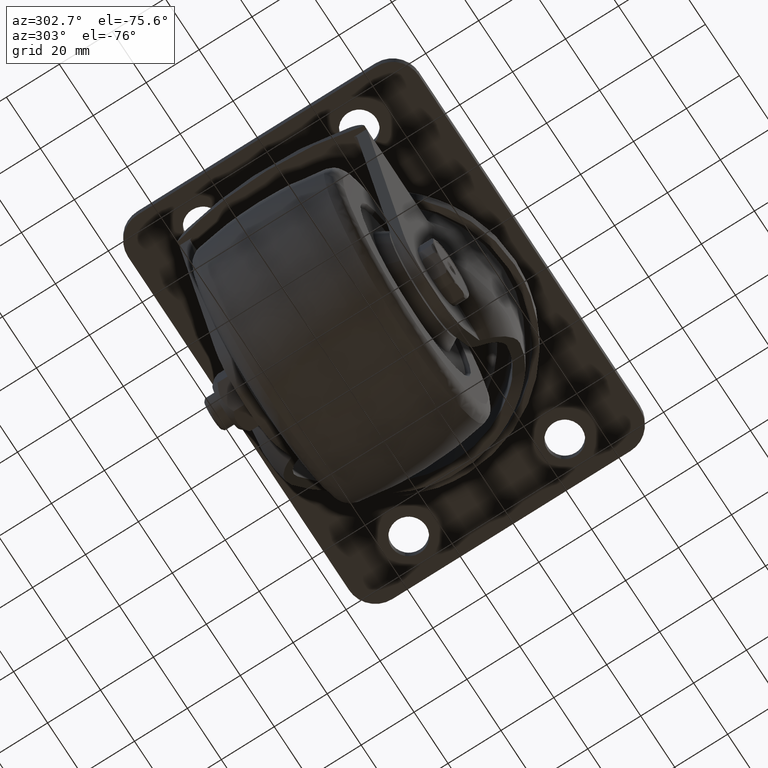
[diagram: clean part render]
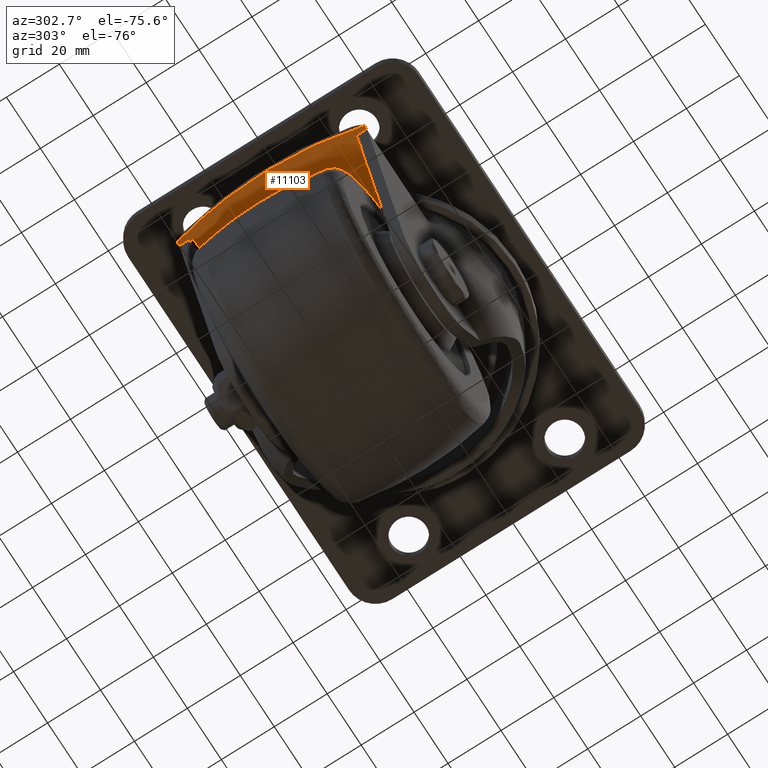
[diagram: same view with one face highlighted and labeled with its STEP entity id]
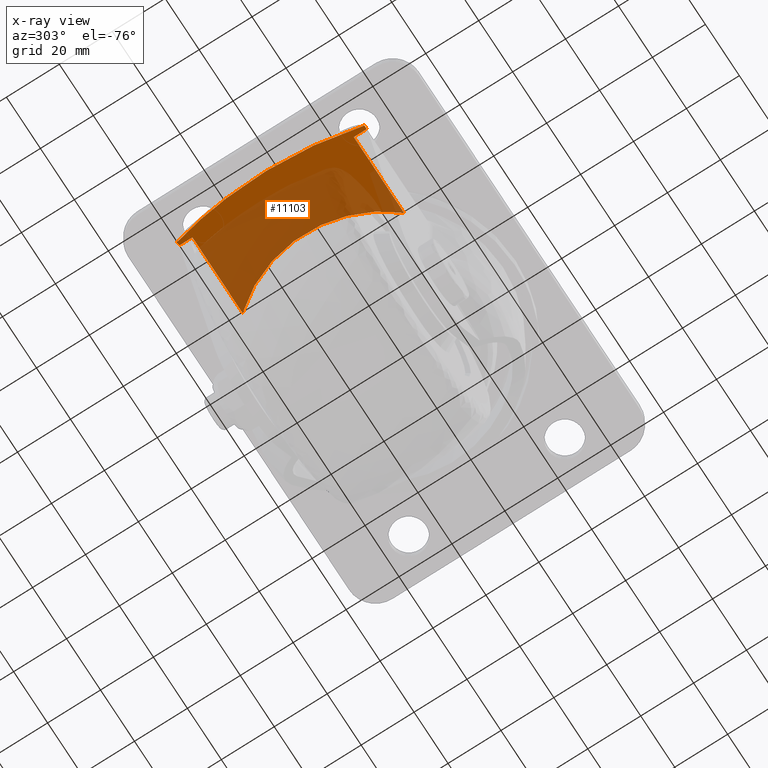
[diagram: x-ray of the same camera — body ghosted, the highlighted face saturated]
A machine part, auxiliary view. The second image highlights one B-rep face of the part: STEP entity #11103.
The next image is the same camera in x-ray: the body ghosted, the highlighted face saturated — about 65% of this face is hidden behind the body in this view.
In plain terms, the highlighted face is a freeform B-spline surface patch.
Its self-contained STEP definition (entity closure, byte-faithful):
#10160=CARTESIAN_POINT('',(-66.660314245660402,-35.398979485566358,-32.262513000000048));
#10161=VERTEX_POINT('',#10160);
#10195=CARTESIAN_POINT('',(-65.303316265371606,-35.398979485566358,-32.262512999999998));
#10196=VERTEX_POINT('',#10195);
#10197=CARTESIAN_POINT('',(-65.303316265371606,-35.398979485566358,-32.262512999999998));
#10198=CARTESIAN_POINT('',(-66.660314245660402,-35.398979485566358,-32.262513000000048));
#10199=QUASI_UNIFORM_CURVE('',1,(#10197,#10198),.UNSPECIFIED.,.F.,.U.);
#10200=EDGE_CURVE('',#10196,#10161,#10199,.T.);
#10235=CARTESIAN_POINT('',(-65.303316265371606,35.398979485566358,-32.262512999999998));
#10236=VERTEX_POINT('',#10235);
#10244=CARTESIAN_POINT('',(-66.660314245660402,35.398979485566358,-32.262513000000048));
#10245=VERTEX_POINT('',#10244);
#10246=CARTESIAN_POINT('',(-66.660314245660402,35.398979485566358,-32.262513000000048));
#10247=CARTESIAN_POINT('',(-65.303316265371606,35.398979485566358,-32.262512999999998));
#10248=QUASI_UNIFORM_CURVE('',1,(#10246,#10247),.UNSPECIFIED.,.F.,.U.);
#10249=EDGE_CURVE('',#10245,#10236,#10248,.T.);
#10709=CARTESIAN_POINT('',(-35.759626885634347,-30.499985000000049,-32.262512999999998));
#10710=VERTEX_POINT('',#10709);
#10711=CARTESIAN_POINT('',(-65.303316265371606,-30.499985000000049,-32.262512999999998));
#10712=VERTEX_POINT('',#10711);
#10713=CARTESIAN_POINT('',(-35.759626885634347,-30.499985000000049,-32.262512999999998));
#10714=CARTESIAN_POINT('',(-65.303316265371606,-30.499985000000049,-32.262512999999998));
#10715=QUASI_UNIFORM_CURVE('',1,(#10713,#10714),.UNSPECIFIED.,.F.,.U.);
#10716=EDGE_CURVE('',#10710,#10712,#10715,.T.);
#10801=CARTESIAN_POINT('',(-35.759626885634347,30.499985000000049,-32.262512999999998));
#10802=VERTEX_POINT('',#10801);
#10838=CARTESIAN_POINT('',(-65.303316265371606,30.499985000000049,-32.262512999999998));
#10839=VERTEX_POINT('',#10838);
#10840=CARTESIAN_POINT('',(-65.303316265371606,30.499985000000049,-32.262512999999998));
#10841=CARTESIAN_POINT('',(-35.759626885634347,30.499985000000049,-32.262512999999998));
#10842=QUASI_UNIFORM_CURVE('',1,(#10840,#10841),.UNSPECIFIED.,.F.,.U.);
#10843=EDGE_CURVE('',#10839,#10802,#10842,.T.);
#11049=CARTESIAN_POINT('',(-66.660314245660402,-35.398979485566358,-32.262513000000048));
#11050=CARTESIAN_POINT('',(-67.694907875065752,-31.242956998214030,-32.262512999999792));
#11051=CARTESIAN_POINT('',(-69.436395496021134,-22.657444857916069,-32.262513000000510));
#11052=CARTESIAN_POINT('',(-70.978853116904546,-8.762320682044742,-32.262512999999551));
#11053=CARTESIAN_POINT('',(-71.153819277549715,6.527791400927129,-32.262513000000503));
#11054=CARTESIAN_POINT('',(-69.658787564138592,21.561430101105469,-32.262512999999757));
#11055=CARTESIAN_POINT('',(-67.694896767171684,31.242955882701700,-32.262513000000361));
#11056=CARTESIAN_POINT('',(-66.660314245660402,35.398979485566358,-32.262513000000048));
#11057=B_SPLINE_CURVE_WITH_KNOTS('',3,(#11049,#11050,#11051,#11052,#11053,#11054,#11055,#11056),.UNSPECIFIED.,.F.,.U.,(4,1,1,1,1,4),(3.913243E-009,12.848591704188079,26.255840257540111,41.897589529828437,58.656648813857423,71.505240514132893),.UNSPECIFIED.);
#11058=EDGE_CURVE('',#10161,#10245,#11057,.T.);
#11064=CARTESIAN_POINT('',(-72.760252656538412,38.935337398954260,-32.262512999999998));
#11065=CARTESIAN_POINT('',(-33.999369557772802,38.935337398954260,-32.262512999999998));
#11066=CARTESIAN_POINT('',(-72.760252656538412,-38.935339297903489,-32.262512999999998));
#11067=CARTESIAN_POINT('',(-33.999369557772802,-38.935339297903489,-32.262512999999998));
#11068=B_SPLINE_SURFACE_WITH_KNOTS('',1,1,((#11064,#11066),(#11065,#11067)),.UNSPECIFIED.,.F.,.F.,.U.,(2,2),(2,2),(0.0,38.760883098765618),(0.0,77.870676696857743),.UNSPECIFIED.);
#11069=ORIENTED_EDGE('',*,*,#11058,.T.);
#11070=ORIENTED_EDGE('',*,*,#10249,.T.);
#11071=CARTESIAN_POINT('',(-65.303316265371606,30.499985000000049,-32.262512999999998));
#11072=CARTESIAN_POINT('',(-65.303316265371606,35.398979485566358,-32.262512999999998));
#11073=QUASI_UNIFORM_CURVE('',1,(#11071,#11072),.UNSPECIFIED.,.F.,.U.);
#11074=EDGE_CURVE('',#10839,#10236,#11073,.T.);
#11075=ORIENTED_EDGE('',*,*,#11074,.F.);
#11076=ORIENTED_EDGE('',*,*,#10843,.T.);
#11077=CARTESIAN_POINT('',(-35.759626885634347,30.499985000000049,-32.262512999999998));
#11078=CARTESIAN_POINT('',(-37.723053719535692,28.198490945501341,-32.262513000000041));
#11079=CARTESIAN_POINT('',(-40.407493955848160,24.353731742031879,-32.262512999999927));
#11080=CARTESIAN_POINT('',(-43.293156341120202,18.538888069430779,-32.262513000000013));
#11081=CARTESIAN_POINT('',(-45.254471440121961,13.171779335949720,-32.262513000000013));
#11082=CARTESIAN_POINT('',(-46.430492941673329,7.929350915990428,-32.262513000000062));
#11083=CARTESIAN_POINT('',(-47.015644799500187,2.510836215149613,-32.262513000000013));
#11084=CARTESIAN_POINT('',(-47.046309730920512,-3.031053303148474,-32.262513000000027));
#11085=CARTESIAN_POINT('',(-46.228310547557719,-9.305140550918996,-32.262512999999807));
#11086=CARTESIAN_POINT('',(-44.470138897314477,-15.649457597792511,-32.262513000000467));
#11087=CARTESIAN_POINT('',(-42.282697581956000,-20.744708232242029,-32.262512999999863));
#11088=CARTESIAN_POINT('',(-39.423661072436403,-25.786549098789809,-32.262512999999949));
#11089=CARTESIAN_POINT('',(-37.274161072101350,-28.724466888399171,-32.262513000000027));
#11090=CARTESIAN_POINT('',(-35.759626885634347,-30.499985000000049,-32.262512999999998));
#11091=B_SPLINE_CURVE_WITH_KNOTS('',3,(#11077,#11078,#11079,#11080,#11081,#11082,#11083,#11084,#11085,#11086,#11087,#11088,#11089,#11090),.UNSPECIFIED.,.F.,.U.,(4,1,1,1,1,1,1,1,1,1,1,4),(0.000000068275241,9.075566780750251,14.002331344765860,19.447698546074509,26.189566525802849,30.079156000168400,35.783747637390633,42.784920340087773,49.008191697413118,55.490780876809687,59.380306729880729,66.381470115705781),.UNSPECIFIED.);
#11092=EDGE_CURVE('',#10802,#10710,#11091,.T.);
#11093=ORIENTED_EDGE('',*,*,#11092,.T.);
#11094=ORIENTED_EDGE('',*,*,#10716,.T.);
#11095=CARTESIAN_POINT('',(-65.303316265371606,-35.398979485566358,-32.262512999999998));
#11096=CARTESIAN_POINT('',(-65.303316265371606,-30.499985000000049,-32.262512999999998));
#11097=QUASI_UNIFORM_CURVE('',1,(#11095,#11096),.UNSPECIFIED.,.F.,.U.);
#11098=EDGE_CURVE('',#10196,#10712,#11097,.T.);
#11099=ORIENTED_EDGE('',*,*,#11098,.F.);
#11100=ORIENTED_EDGE('',*,*,#10200,.T.);
#11101=EDGE_LOOP('',(#11069,#11070,#11075,#11076,#11093,#11094,#11099,#11100));
#11102=FACE_OUTER_BOUND('',#11101,.T.);
#11103=ADVANCED_FACE('',(#11102),#11068,.T.);